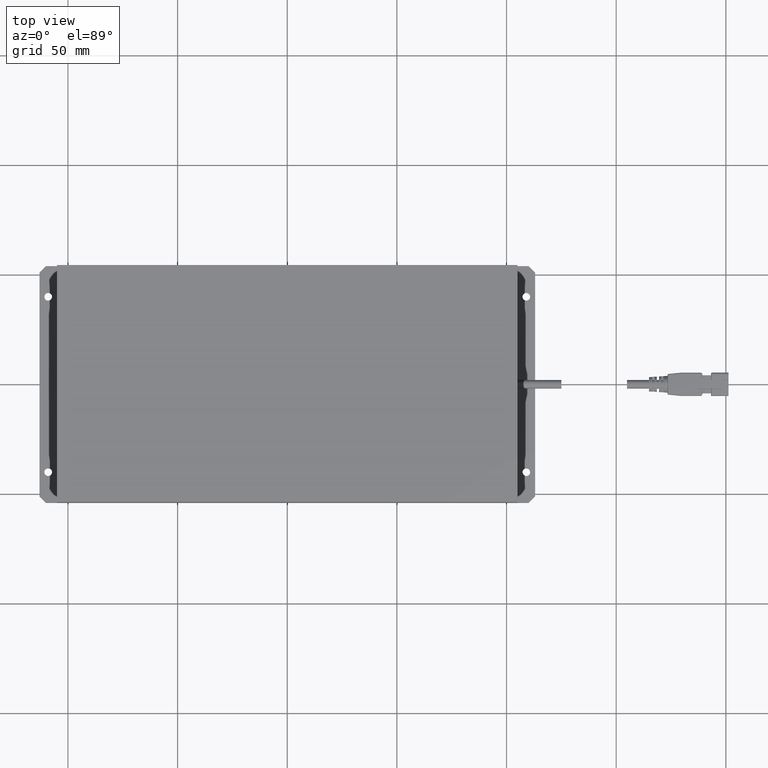
[diagram: clean part render]
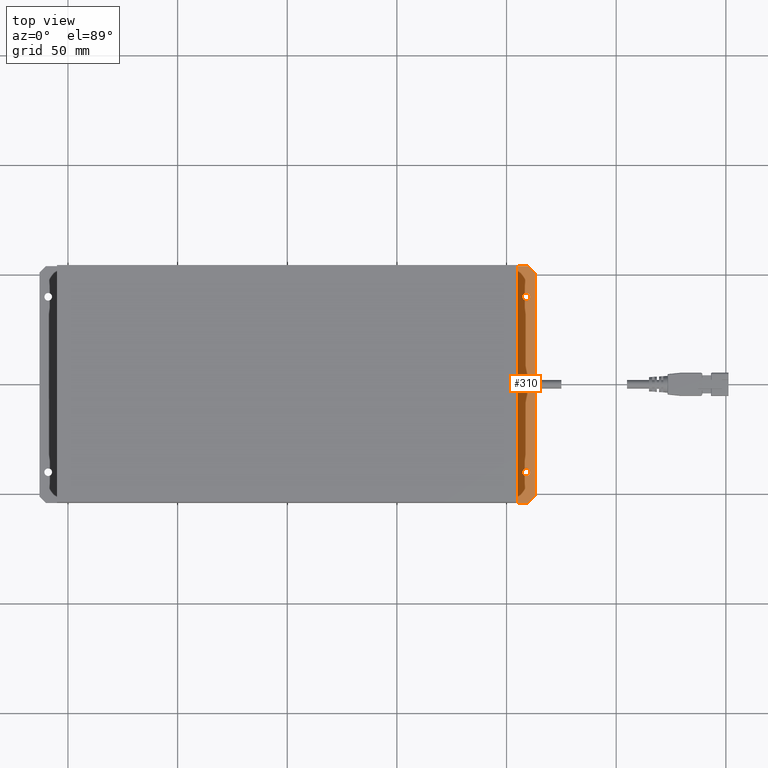
[diagram: same view with one face highlighted and labeled with its STEP entity id]
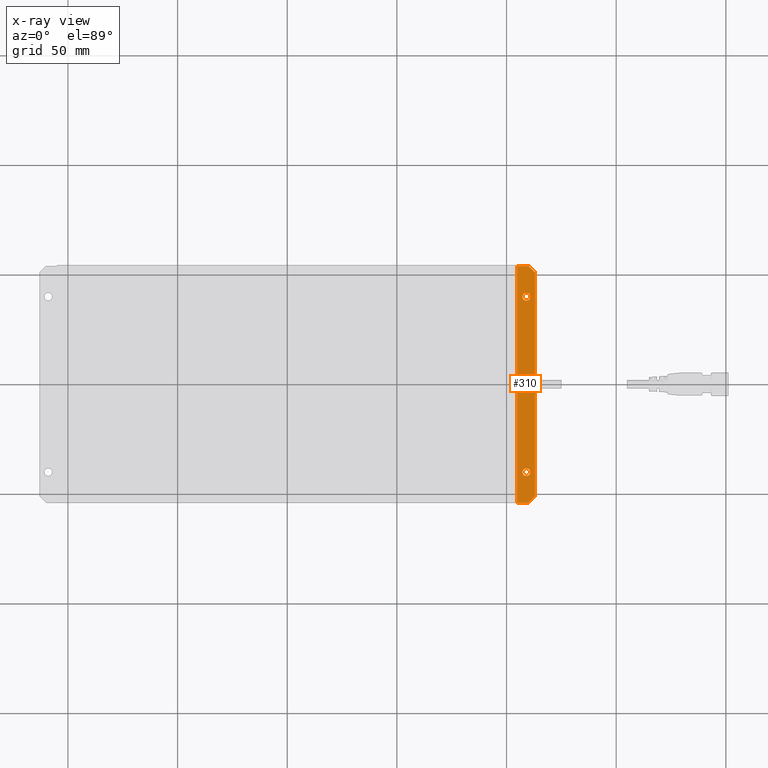
[diagram: x-ray of the same camera — body ghosted, the highlighted face saturated]
A machine part, top view. The second image highlights one B-rep face of the part: STEP entity #310.
The next image is the same camera in x-ray: the body ghosted, the highlighted face saturated — about 0% of this face is hidden behind the body in this view.
In plain terms, the highlighted planar face has unit normal (-0, -0, -1).
Its self-contained STEP definition (entity closure, byte-faithful):
#310=ADVANCED_FACE('0:300505',(#794,#795,#796),#797,.F.);
#794=FACE_BOUND('',#1485,.T.);
#795=FACE_BOUND('',#1486,.T.);
#796=FACE_OUTER_BOUND('',#1487,.T.);
#797=PLANE('',#1488);
#1485=EDGE_LOOP('',(#2589));
#1486=EDGE_LOOP('',(#2590));
#1487=EDGE_LOOP('',(#2591,#2592,#2593,#2594,#2595,#2596));
#1488=AXIS2_PLACEMENT_3D('',#2597,#2598,#2599);
#2589=ORIENTED_EDGE('',*,*,#4471,.F.);
#2590=ORIENTED_EDGE('',*,*,#4459,.F.);
#2591=ORIENTED_EDGE('',*,*,#4472,.T.);
#2592=ORIENTED_EDGE('',*,*,#4473,.T.);
#2593=ORIENTED_EDGE('',*,*,#4474,.F.);
#2594=ORIENTED_EDGE('',*,*,#4475,.T.);
#2595=ORIENTED_EDGE('',*,*,#4476,.T.);
#2596=ORIENTED_EDGE('',*,*,#4477,.T.);
#2597=CARTESIAN_POINT('',(0.113,0.0539999999999996,0.0019999999999998));
#2598=DIRECTION('',(-1.20301288046204E-29,-3.71352796603441E-15,-1.0));
#2599=DIRECTION('',(-3.21964677141295E-15,-1.0,3.71352796603441E-15));
#4459=EDGE_CURVE('0:300577',#5237,#5237,#5238,.T.);
#4471=EDGE_CURVE('0:300556',#5258,#5258,#5259,.T.);
#4472=EDGE_CURVE('0:300559',#5260,#5261,#5262,.T.);
#4473=EDGE_CURVE('0:300562',#5261,#5263,#5264,.T.);
#4474=EDGE_CURVE('0:300565',#5265,#5263,#5266,.T.);
#4475=EDGE_CURVE('0:300568',#5265,#5267,#5268,.T.);
#4476=EDGE_CURVE('0:300571',#5267,#5269,#5270,.T.);
#4477=EDGE_CURVE('0:300574',#5269,#5260,#5271,.T.);
#5237=VERTEX_POINT('',#6359);
#5238=CIRCLE('',#6360,0.00175);
#5258=VERTEX_POINT('',#6388);
#5259=CIRCLE('',#6389,0.00175);
#5260=VERTEX_POINT('',#6390);
#5261=VERTEX_POINT('',#6391);
#5262=LINE('',#6392,#6393);
#5263=VERTEX_POINT('',#6394);
#5264=LINE('',#6395,#6396);
#5265=VERTEX_POINT('',#6397);
#5266=LINE('',#6398,#6399);
#5267=VERTEX_POINT('',#6400);
#5268=LINE('',#6401,#6402);
#5269=VERTEX_POINT('',#6403);
#5270=LINE('',#6404,#6405);
#5271=LINE('',#6406,#6407);
#6359=CARTESIAN_POINT('',(0.11075,0.0399999999999996,0.00199999999999985));
#6360=AXIS2_PLACEMENT_3D('',#7960,#7961,#7962);
#6388=CARTESIAN_POINT('',(0.10725,-0.0400000000000004,0.00200000000000015));
#6389=AXIS2_PLACEMENT_3D('',#7971,#7972,#7973);
#6390=CARTESIAN_POINT('',(0.11,0.0539999999999996,0.0019999999999998));
#6391=CARTESIAN_POINT('',(0.105,0.0539999999999996,0.0019999999999998));
#6392=CARTESIAN_POINT('',(0.11,0.0539999999999996,0.0019999999999998));
#6393=VECTOR('',#7974,1.0);
#6394=CARTESIAN_POINT('',(0.105,-0.0540000000000004,0.0020000000000002));
#6395=CARTESIAN_POINT('',(0.105,0.0539999999999996,0.0019999999999998));
#6396=VECTOR('',#7975,1.0);
#6397=CARTESIAN_POINT('',(0.11,-0.0540000000000004,0.0020000000000002));
#6398=CARTESIAN_POINT('',(0.11,-0.0540000000000004,0.0020000000000002));
#6399=VECTOR('',#7976,1.0);
#6400=CARTESIAN_POINT('',(0.113,-0.0510000000000004,0.00200000000000019));
#6401=CARTESIAN_POINT('',(0.11,-0.0540000000000004,0.0020000000000002));
#6402=VECTOR('',#7977,1.0);
#6403=CARTESIAN_POINT('',(0.113,0.0509999999999996,0.00199999999999981));
#6404=CARTESIAN_POINT('',(0.113,-0.0510000000000004,0.00200000000000019));
#6405=VECTOR('',#7978,1.0);
#6406=CARTESIAN_POINT('',(0.113,0.0509999999999996,0.00199999999999981));
#6407=VECTOR('',#7979,1.0);
#7960=CARTESIAN_POINT('',(0.109,0.0399999999999996,0.00199999999999985));
#7961=DIRECTION('',(1.20301288046204E-29,3.71352796603441E-15,1.0));
#7962=DIRECTION('',(1.0,-3.21964677141295E-15,-7.388047822602E-32));
#7971=CARTESIAN_POINT('',(0.109,-0.0400000000000004,0.00200000000000015));
#7972=DIRECTION('',(1.20301288046204E-29,3.71352796603441E-15,1.0));
#7973=DIRECTION('',(-1.0,3.21964677141295E-15,7.388047822602E-32));
#7974=DIRECTION('',(-1.0,3.21964677141295E-15,0.0));
#7975=DIRECTION('',(-3.21964677141295E-15,-1.0,3.71352796603441E-15));
#7976=DIRECTION('',(-1.0,3.21964677141295E-15,0.0));
#7977=DIRECTION('',(0.70710678118655,0.707106781186545,-2.62586080690882E-15));
#7978=DIRECTION('',(3.21964677141295E-15,1.0,-3.71352796603441E-15));
#7979=DIRECTION('',(-0.707106781186545,0.70710678118655,-2.62586080690882E-15));